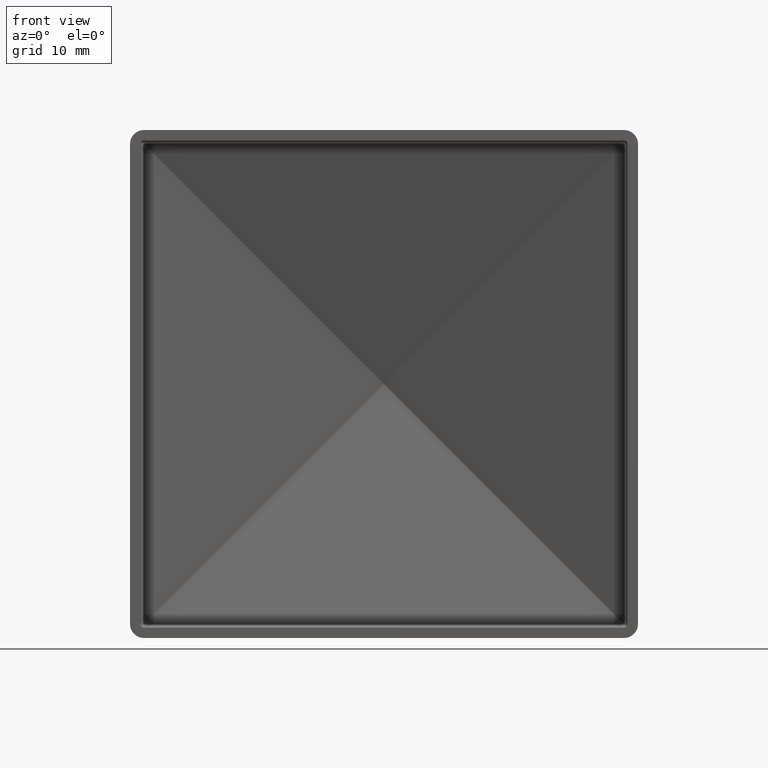
[diagram: clean part render]
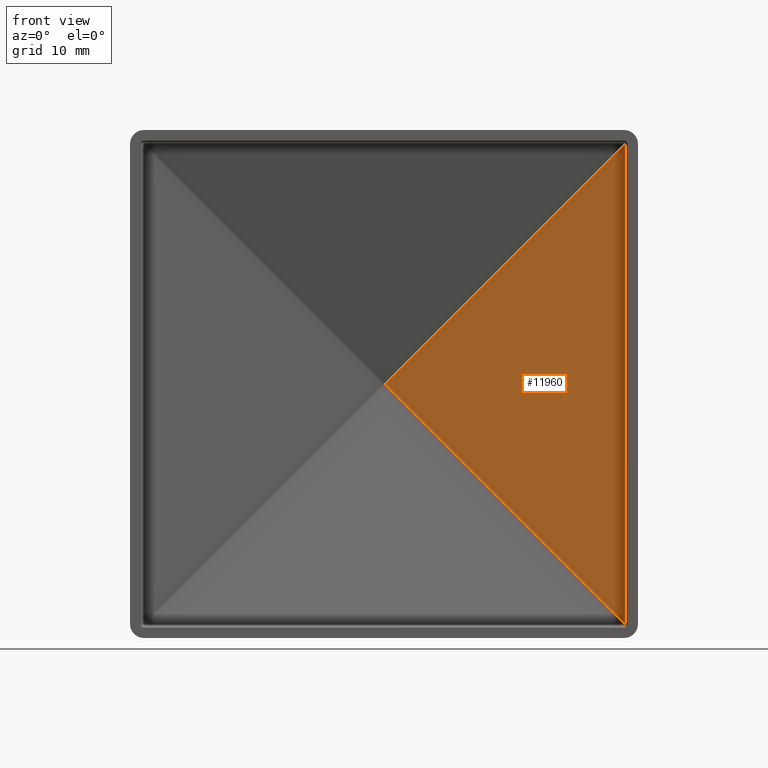
[diagram: same view with one face highlighted and labeled with its STEP entity id]
A machine part, front view. The second image highlights one B-rep face of the part: STEP entity #11960.
In plain terms, the highlighted planar face has unit normal (-0.2627, -0.9649, 0).
Its self-contained STEP definition (entity closure, byte-faithful):
#240 = EDGE_LOOP ( 'NONE', ( #4718, #661, #7232 ) ) ;
#365 = DIRECTION ( 'NONE',  ( -0.6943612178190650130, 0.1890105774226682467, -0.6943612178190646800 ) ) ;
#484 = CARTESIAN_POINT ( 'NONE',  ( -17.84566009799324959, 23.30678765556619680, -17.97698554319407549 ) ) ;
#661 = ORIENTED_EDGE ( 'NONE', *, *, #11845, .T. ) ;
#839 = FACE_OUTER_BOUND ( 'NONE', #240, .T. ) ;
#1151 = AXIS2_PLACEMENT_3D ( 'NONE', #9646, #8579, #1486 ) ;
#1486 = DIRECTION ( 'NONE',  ( 0.9648909315415935550, -0.2626508904016808255, 0.000000000000000000 ) ) ;
#1630 = LINE ( 'NONE', #8280, #4490 ) ;
#1932 = LINE ( 'NONE', #5292, #7353 ) ;
#3818 = VECTOR ( 'NONE', #365, 1000.000000000000000 ) ;
#4160 = LINE ( 'NONE', #484, #3818 ) ;
#4490 = VECTOR ( 'NONE', #7159, 1000.000000000000000 ) ;
#4718 = ORIENTED_EDGE ( 'NONE', *, *, #12585, .T. ) ;
#4872 = VERTEX_POINT ( 'NONE', #8040 ) ;
#5056 = VERTEX_POINT ( 'NONE', #5510 ) ;
#5292 = CARTESIAN_POINT ( 'NONE',  ( 17.59144621162810651, 13.66052897365438845, -17.46012076642725219 ) ) ;
#5510 = CARTESIAN_POINT ( 'NONE',  ( 0.1313254452008426609, 18.41331098860828419, 4.712049166468788670E-15 ) ) ;
#5784 = VERTEX_POINT ( 'NONE', #7442 ) ;
#6654 = PLANE ( 'NONE',  #1151 ) ;
#6699 = DIRECTION ( 'NONE',  ( 0.6943612178190651241, -0.1890105774226682467, -0.6943612178190646800 ) ) ;
#7159 = DIRECTION ( 'NONE',  ( -0.000000000000000000, -0.000000000000000000, 1.000000000000000000 ) ) ;
#7232 = ORIENTED_EDGE ( 'NONE', *, *, #11106, .T. ) ;
#7353 = VECTOR ( 'NONE', #6699, 999.9999999999998863 ) ;
#7442 = CARTESIAN_POINT ( 'NONE',  ( 34.88132544520084366, 8.954088041123295483, 34.74999999999995026 ) ) ;
#8040 = CARTESIAN_POINT ( 'NONE',  ( 34.88132544520084366, 8.954088041123295483, -34.75000000000000711 ) ) ;
#8280 = CARTESIAN_POINT ( 'NONE',  ( 34.88132544520084366, 8.954088041123295483, -36.75000000000000711 ) ) ;
#8579 = DIRECTION ( 'NONE',  ( -0.2626508904016808810, -0.9648909315415936661, 0.000000000000000000 ) ) ;
#9646 = CARTESIAN_POINT ( 'NONE',  ( -0.3677112465623537108, 18.54915269584176585, -36.75000000000000711 ) ) ;
#11106 = EDGE_CURVE ( 'NONE', #4872, #5784, #1630, .T. ) ;
#11845 = EDGE_CURVE ( 'NONE', #5056, #4872, #1932, .T. ) ;
#11960 = ADVANCED_FACE ( 'NONE', ( #839 ), #6654, .T. ) ;
#12585 = EDGE_CURVE ( 'NONE', #5784, #5056, #4160, .T. ) ;